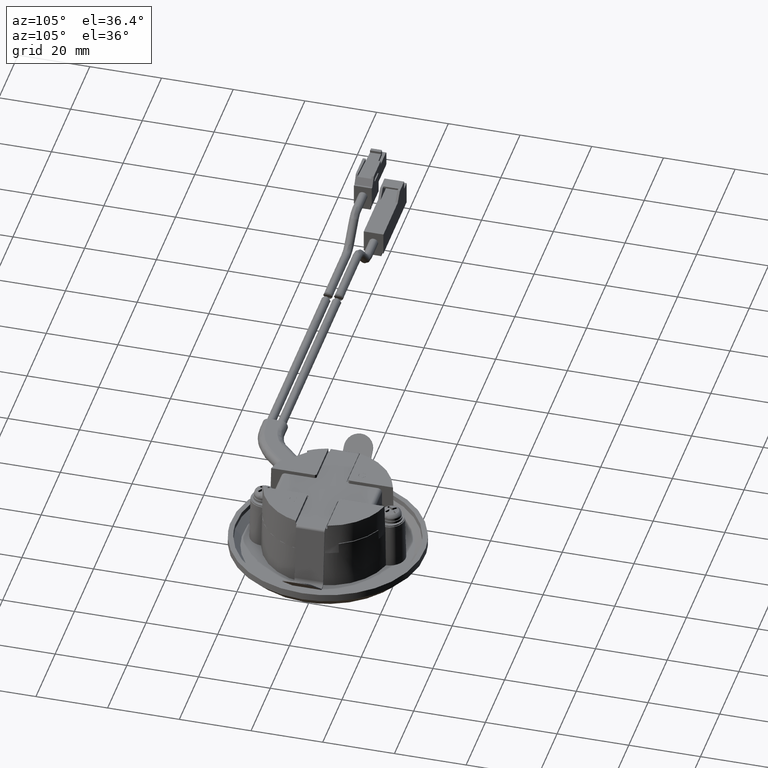
[diagram: clean part render]
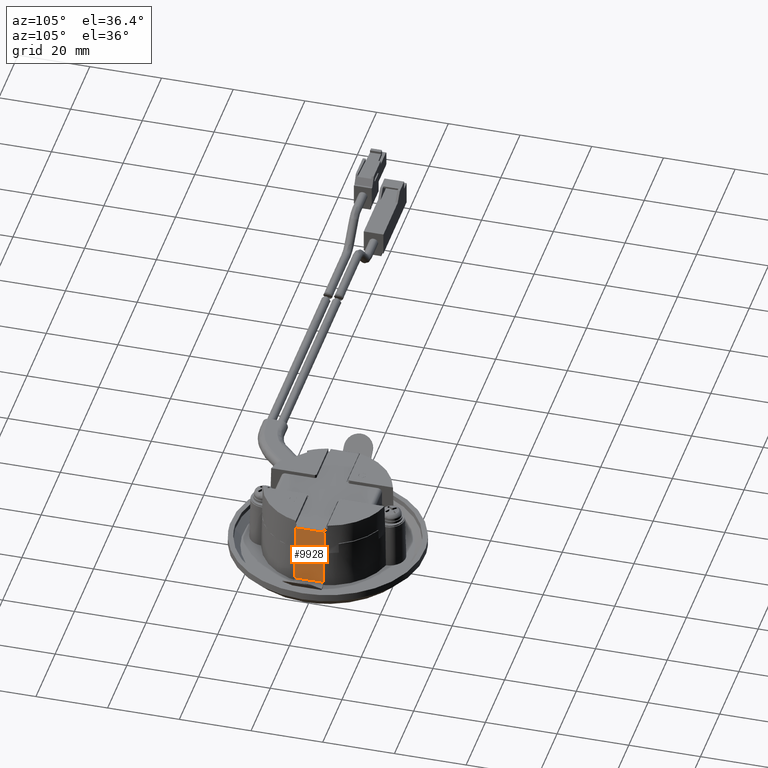
[diagram: same view with one face highlighted and labeled with its STEP entity id]
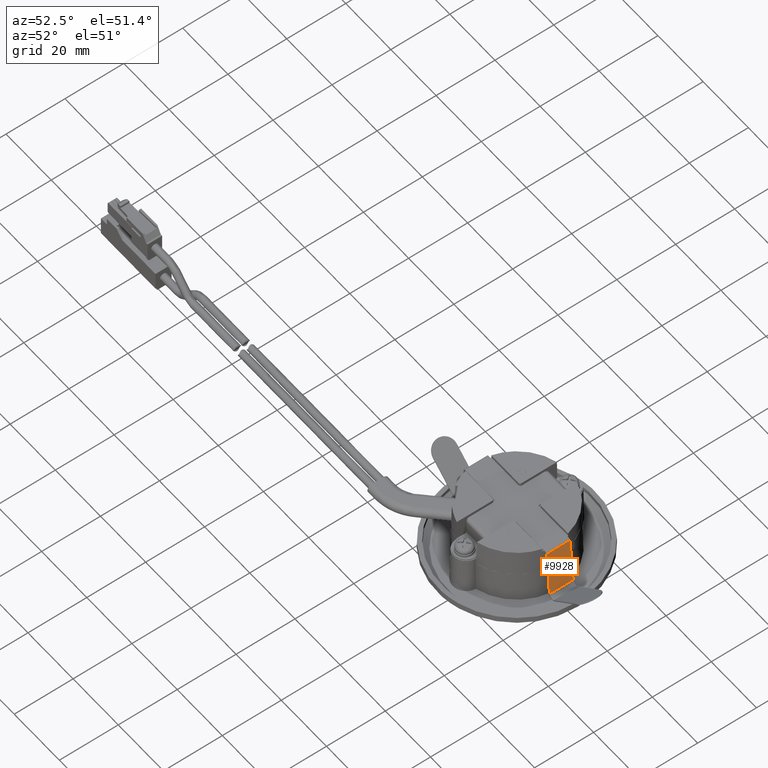
[diagram: same view with one face highlighted and labeled with its STEP entity id]
A machine part, auxiliary view. The second image highlights one B-rep face of the part: STEP entity #9928.
A second angle (auxiliary view) of the same face is appended — the face is thin or edge-on in the first view.
In plain terms, the highlighted face is a freeform B-spline surface patch.
Its self-contained STEP definition (entity closure, byte-faithful):
#8639=CARTESIAN_POINT('',(19.703680585510849,-3.999999999999780,4.568955774105720));
#8640=VERTEX_POINT('',#8639);
#8653=CARTESIAN_POINT('',(18.330803819056651,-3.999999999999780,20.261009019920252));
#8654=VERTEX_POINT('',#8653);
#8655=CARTESIAN_POINT('',(19.703680585510849,-3.999999999999780,4.568955774105720));
#8656=CARTESIAN_POINT('',(18.330803819056651,-3.999999999999780,20.261009019920252));
#8657=QUASI_UNIFORM_CURVE('',1,(#8655,#8656),.UNSPECIFIED.,.F.,.U.);
#8658=EDGE_CURVE('',#8640,#8654,#8657,.T.);
#9883=CARTESIAN_POINT('',(18.330803819056651,3.999999999998785,20.261009019920252));
#9884=VERTEX_POINT('',#9883);
#9885=CARTESIAN_POINT('',(18.330803819056651,3.999999999998785,20.261009019920252));
#9886=CARTESIAN_POINT('',(18.330803819056651,-3.999999999999780,20.261009019920252));
#9887=QUASI_UNIFORM_CURVE('',1,(#9885,#9886),.UNSPECIFIED.,.F.,.U.);
#9888=EDGE_CURVE('',#9884,#8654,#9887,.T.);
#9907=CARTESIAN_POINT('',(18.262228627233121,-4.399599984494156,21.044827049134440));
#9908=CARTESIAN_POINT('',(19.772255814157759,-4.399599984494156,3.785137323997862));
#9909=CARTESIAN_POINT('',(18.262228627233121,4.399600199069883,21.044827049134440));
#9910=CARTESIAN_POINT('',(19.772255814157759,4.399600199069883,3.785137323997862));
#9911=B_SPLINE_SURFACE_WITH_KNOTS('',1,1,((#9907,#9909),(#9908,#9910)),.UNSPECIFIED.,.F.,.F.,.U.,(2,2),(2,2),(0.0,17.325618935935211),(0.0,8.799200183564039),.UNSPECIFIED.);
#9912=ORIENTED_EDGE('',*,*,#8658,.F.);
#9913=CARTESIAN_POINT('',(19.703680585510849,3.999999999998785,4.568955774105720));
#9914=VERTEX_POINT('',#9913);
#9915=CARTESIAN_POINT('',(19.703680585510849,3.999999999998785,4.568955774105720));
#9916=CARTESIAN_POINT('',(19.703680585510849,-3.999999999999780,4.568955774105720));
#9917=QUASI_UNIFORM_CURVE('',1,(#9915,#9916),.UNSPECIFIED.,.F.,.U.);
#9918=EDGE_CURVE('',#9914,#8640,#9917,.T.);
#9919=ORIENTED_EDGE('',*,*,#9918,.F.);
#9920=CARTESIAN_POINT('',(19.703680585510849,3.999999999998785,4.568955774105720));
#9921=CARTESIAN_POINT('',(18.330803819056651,3.999999999998785,20.261009019920252));
#9922=QUASI_UNIFORM_CURVE('',1,(#9920,#9921),.UNSPECIFIED.,.F.,.U.);
#9923=EDGE_CURVE('',#9914,#9884,#9922,.T.);
#9924=ORIENTED_EDGE('',*,*,#9923,.T.);
#9925=ORIENTED_EDGE('',*,*,#9888,.T.);
#9926=EDGE_LOOP('',(#9912,#9919,#9924,#9925));
#9927=FACE_OUTER_BOUND('',#9926,.T.);
#9928=ADVANCED_FACE('',(#9927),#9911,.T.);